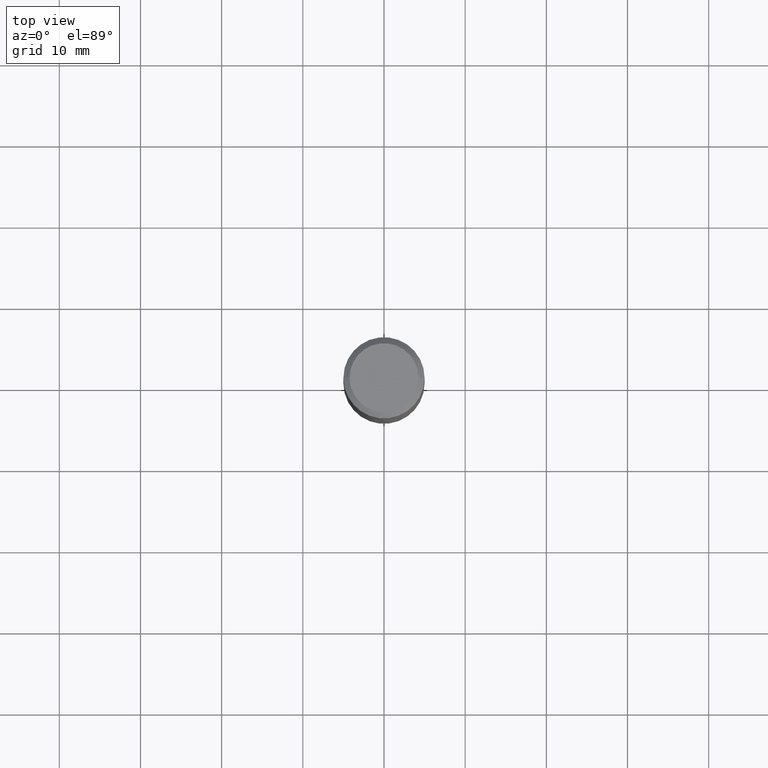
[diagram: clean part render]
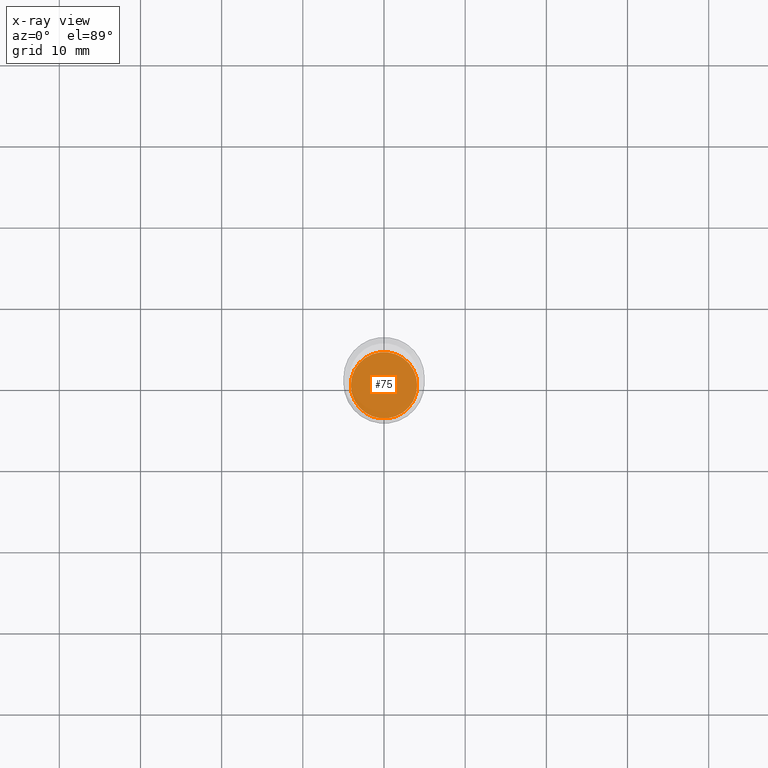
[diagram: x-ray — body ghosted, one internal face saturated and labeled with its STEP entity id]
A machine part, top view, then the same camera in x-ray: the body is ghosted and one INTERNAL B-rep face — a face not visible from any outside direction — is saturated and labeled: STEP entity #75.
In plain terms, the highlighted planar face has unit normal (-0, 0, 1).
Its self-contained STEP definition (entity closure, byte-faithful):
#18 = ORIENTED_EDGE ( 'NONE', *, *, #176, .F. ) ;
#19 = EDGE_CURVE ( 'NONE', #441, #140, #405, .T. ) ;
#20 = PLANE ( 'NONE',  #76 ) ;
#54 = CARTESIAN_POINT ( 'NONE',  ( 5.198822135068982087E-29, -7.422540178246643119E-15, -2.125899999999999679 ) ) ;
#75 = ADVANCED_FACE ( 'NONE', ( #317 ), #20, .F. ) ;
#76 = AXIS2_PLACEMENT_3D ( 'NONE', #163, #172, #202 ) ;
#82 = AXIS2_PLACEMENT_3D ( 'NONE', #54, #271, #209 ) ;
#106 = DIRECTION ( 'NONE',  ( 1.000000000000000000, -6.982962677686262766E-15, 0.000000000000000000 ) ) ;
#140 = VERTEX_POINT ( 'NONE', #421 ) ;
#163 = CARTESIAN_POINT ( 'NONE',  ( 5.198822135068982087E-29, -7.422540178246643119E-15, -2.125899999999999679 ) ) ;
#172 = DIRECTION ( 'NONE',  ( -2.438088387897960049E-29, 3.491481338843145188E-15, 1.000000000000000000 ) ) ;
#176 = EDGE_CURVE ( 'NONE', #140, #441, #180, .T. ) ;
#180 = CIRCLE ( 'NONE', #82, 0.1608999999999999875 ) ;
#202 = DIRECTION ( 'NONE',  ( 1.000000000000000000, -6.982962677686265922E-15, 4.876176775795935793E-29 ) ) ;
#209 = DIRECTION ( 'NONE',  ( 1.000000000000000000, -6.982962677686262766E-15, 0.000000000000000000 ) ) ;
#221 = EDGE_LOOP ( 'NONE', ( #282, #18 ) ) ;
#271 = DIRECTION ( 'NONE',  ( -2.445468806185136597E-29, 3.491481338843145583E-15, 1.000000000000000000 ) ) ;
#282 = ORIENTED_EDGE ( 'NONE', *, *, #19, .F. ) ;
#317 = FACE_OUTER_BOUND ( 'NONE', #221, .T. ) ;
#376 = CARTESIAN_POINT ( 'NONE',  ( 0.1608999999999999875, -8.546098873086362259E-15, -2.125899999999999679 ) ) ;
#405 = CIRCLE ( 'NONE', #485, 0.1608999999999999875 ) ;
#421 = CARTESIAN_POINT ( 'NONE',  ( -0.1608999999999999875, -6.276627689234531202E-15, -2.125899999999999679 ) ) ;
#441 = VERTEX_POINT ( 'NONE', #376 ) ;
#442 = DIRECTION ( 'NONE',  ( -2.445468806185136597E-29, 3.491481338843145583E-15, 1.000000000000000000 ) ) ;
#482 = CARTESIAN_POINT ( 'NONE',  ( 5.198822135068982087E-29, -7.422540178246643119E-15, -2.125899999999999679 ) ) ;
#485 = AXIS2_PLACEMENT_3D ( 'NONE', #482, #442, #106 ) ;